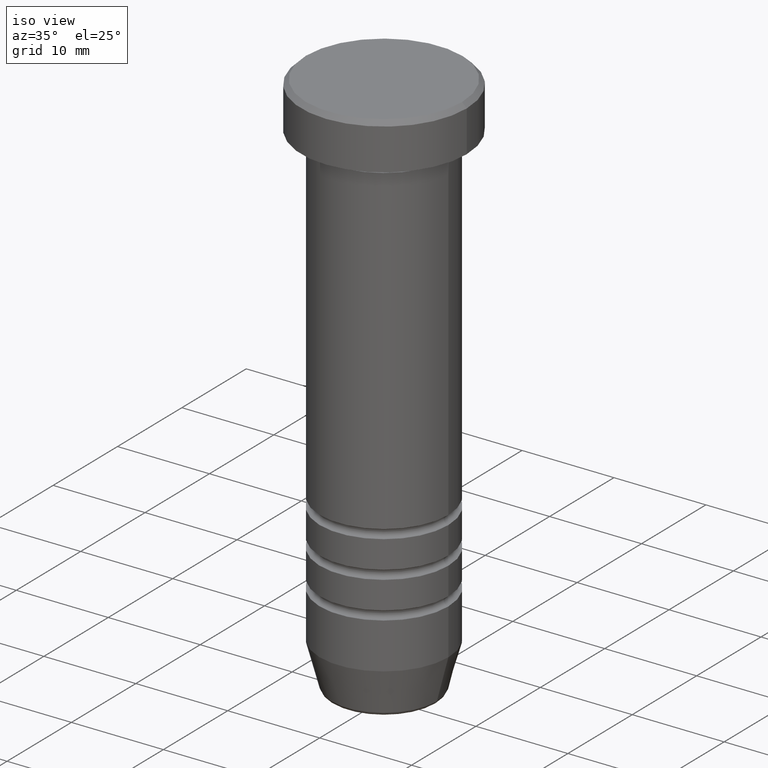
[diagram: clean part render]
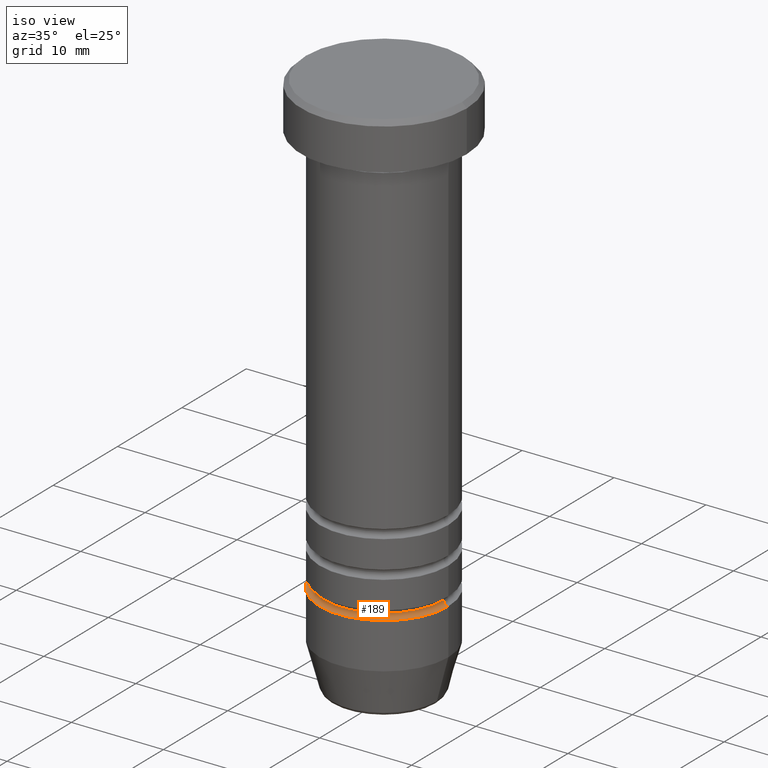
[diagram: same view with one face highlighted and labeled with its STEP entity id]
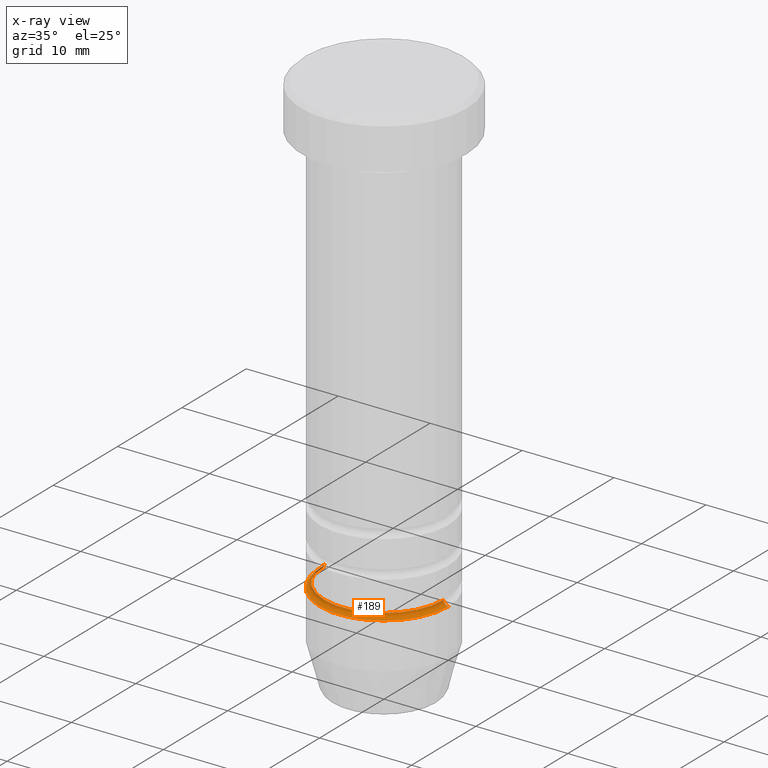
[diagram: x-ray of the same camera — body ghosted, the highlighted face saturated]
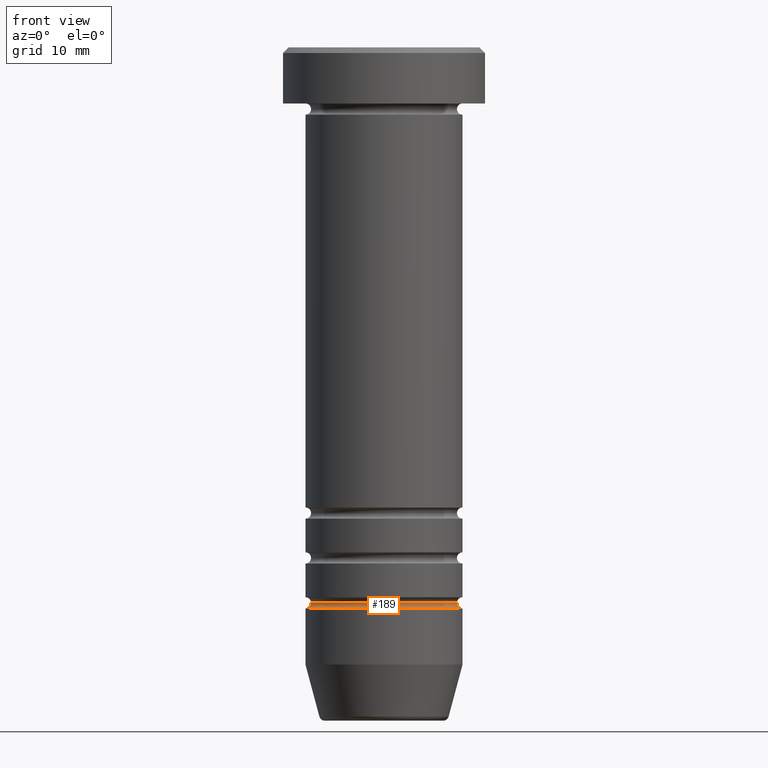
[diagram: same view with one face highlighted and labeled with its STEP entity id]
A machine part, iso view. The second image highlights one B-rep face of the part: STEP entity #189.
The next image is the same camera in x-ray: the body ghosted, the highlighted face saturated — about 1% of this face is hidden behind the body in this view.
A second angle (front view) of the same face is appended — the face is thin or edge-on in the first view.
In plain terms, the highlighted toroidal blend (fillet) surface has major radius 7 mm and minor (blend) radius 0.5 mm.
Its self-contained STEP definition (entity closure, byte-faithful):
#24 = ORIENTED_EDGE ( 'NONE', *, *, #1003, .T. ) ;
#26 = DIRECTION ( 'NONE',  ( 1.000000000000000000, 0.000000000000000000, 0.000000000000000000 ) ) ;
#57 = ORIENTED_EDGE ( 'NONE', *, *, #626, .T. ) ;
#74 = DIRECTION ( 'NONE',  ( -1.000000000000000000, -1.224646799147351482E-16, 0.000000000000000000 ) ) ;
#164 = DIRECTION ( 'NONE',  ( -1.000000000000000000, 0.000000000000000000, 0.000000000000000000 ) ) ;
#189 = ADVANCED_FACE ( 'NONE', ( #836 ), #542, .F. ) ;
#191 = CARTESIAN_POINT ( 'NONE',  ( -6.499999999999995559, 8.266365894244627431E-16, -49.50000000000000000 ) ) ;
#217 = CARTESIAN_POINT ( 'NONE',  ( 0.000000000000000000, 0.000000000000000000, -50.00000000000000000 ) ) ;
#231 = CIRCLE ( 'NONE', #1005, 0.5000000000000004441 ) ;
#246 = AXIS2_PLACEMENT_3D ( 'NONE', #785, #546, #867 ) ;
#264 = CIRCLE ( 'NONE', #478, 0.5000000000000004441 ) ;
#267 = VERTEX_POINT ( 'NONE', #434 ) ;
#434 = CARTESIAN_POINT ( 'NONE',  ( -7.000000000000000000, 8.572527594031473190E-16, -50.00000000000000000 ) ) ;
#446 = CARTESIAN_POINT ( 'NONE',  ( 6.499999999999995559, 0.000000000000000000, -49.50000000000000000 ) ) ;
#478 = AXIS2_PLACEMENT_3D ( 'NONE', #744, #810, #74 ) ;
#524 = ORIENTED_EDGE ( 'NONE', *, *, #811, .F. ) ;
#542 = TOROIDAL_SURFACE ( 'NONE', #1054, 6.999999999999995559, 0.5000000000000000000 ) ;
#546 = DIRECTION ( 'NONE',  ( 0.000000000000000000, 0.000000000000000000, -1.000000000000000000 ) ) ;
#626 = EDGE_CURVE ( 'NONE', #267, #680, #631, .T. ) ;
#631 = CIRCLE ( 'NONE', #743, 7.000000000000000000 ) ;
#662 = CARTESIAN_POINT ( 'NONE',  ( 0.000000000000000000, 0.000000000000000000, -49.50000000000000000 ) ) ;
#670 = CIRCLE ( 'NONE', #246, 6.499999999999995559 ) ;
#680 = VERTEX_POINT ( 'NONE', #990 ) ;
#720 = DIRECTION ( 'NONE',  ( -0.000000000000000000, -1.000000000000000000, -0.000000000000000000 ) ) ;
#721 = ORIENTED_EDGE ( 'NONE', *, *, #752, .T. ) ;
#743 = AXIS2_PLACEMENT_3D ( 'NONE', #217, #921, #26 ) ;
#744 = CARTESIAN_POINT ( 'NONE',  ( 6.999999999999995559, 8.572527594031467273E-16, -49.50000000000000000 ) ) ;
#752 = EDGE_CURVE ( 'NONE', #855, #1034, #670, .T. ) ;
#772 = EDGE_LOOP ( 'NONE', ( #57, #24, #721, #524 ) ) ;
#785 = CARTESIAN_POINT ( 'NONE',  ( 0.000000000000000000, 0.000000000000000000, -49.50000000000000000 ) ) ;
#810 = DIRECTION ( 'NONE',  ( -1.224646799147353207E-16, 1.000000000000000000, 0.000000000000000000 ) ) ;
#811 = EDGE_CURVE ( 'NONE', #267, #1034, #231, .T. ) ;
#836 = FACE_OUTER_BOUND ( 'NONE', #772, .T. ) ;
#855 = VERTEX_POINT ( 'NONE', #446 ) ;
#867 = DIRECTION ( 'NONE',  ( 1.000000000000000000, 0.000000000000000000, 0.000000000000000000 ) ) ;
#870 = DIRECTION ( 'NONE',  ( 0.000000000000000000, 0.000000000000000000, -1.000000000000000000 ) ) ;
#918 = DIRECTION ( 'NONE',  ( 0.000000000000000000, 0.000000000000000000, -1.000000000000000000 ) ) ;
#921 = DIRECTION ( 'NONE',  ( -0.000000000000000000, -0.000000000000000000, 1.000000000000000000 ) ) ;
#990 = CARTESIAN_POINT ( 'NONE',  ( 7.000000000000000000, 0.000000000000000000, -50.00000000000000000 ) ) ;
#1003 = EDGE_CURVE ( 'NONE', #680, #855, #264, .T. ) ;
#1005 = AXIS2_PLACEMENT_3D ( 'NONE', #1016, #720, #870 ) ;
#1016 = CARTESIAN_POINT ( 'NONE',  ( -6.999999999999995559, 0.000000000000000000, -49.50000000000000000 ) ) ;
#1034 = VERTEX_POINT ( 'NONE', #191 ) ;
#1054 = AXIS2_PLACEMENT_3D ( 'NONE', #662, #918, #164 ) ;